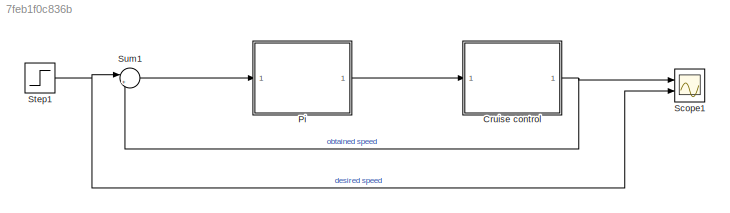
MODEL slx_7feb1f0c836b
KIND model
CONFIG AbsTol = auto
CONFIG EnableMultiTasking = off
CONFIG FixedStep = auto
CONFIG MaxStep = auto
CONFIG MinStep = auto
CONFIG RelTol = 1e-3
CONFIG SampleTimeConstraint = Unconstrained
CONFIG SolverName = VariableStepAuto
CONFIG StartTime = 0.0
CONFIG StopTime = 10.0
WORKSPACE source: mxarray member
WORKSPACE Ki = 40
WORKSPACE Kp = 1500
WORKSPACE b = 50
WORKSPACE m = 1000
BLOCK [ModelReference] Cruise control
  ModelNameDialog = Subsystem1
  ModelReferenceVersion = 1.3
  Ports = [1, 1]
BLOCK [ModelReference] Pi
  ModelNameDialog = Subsystem
  ModelReferenceVersion = 1.3
  Ports = [1, 1]
BLOCK [Scope] Scope1
  Floating = off
  NumInputPorts = 2
  Ports = [2]
  ScopeSpecificationString = Simulink.scopes.TimeScopeBlockCfg('CurrentConfiguration', extmgr.ConfigurationSet(extmgr.Configuration('Core','General UI',true),extmgr.Configuration('Core','Source UI',true),extmgr.Configuration('Sources','WiredSimulink',true,'DataLoggingVariableName','ScopeData1'),extmgr.Configuration('Visuals','Time Domain',true,'SerializedDisplays',{struct('MinYLimReal','-0.12343','MaxYLimReal','1.11091','YLab...<+2004ch>
BLOCK [Step] Step1
  SampleTime = 0
BLOCK [Sum] Sum1
  Inputs = |+-
  Ports = [2, 1]
NET Cruise control:1 -> Scope1:1, Sum1:2
LINE Pi:1 -> Cruise control:1
NET Step1:1 -> Scope1:2, Sum1:1
LINE Sum1:1 -> Pi:1
note: NET lines group one-source signal fan-out (src -> all destinations, sorted); 1:1 wires keep LINE
